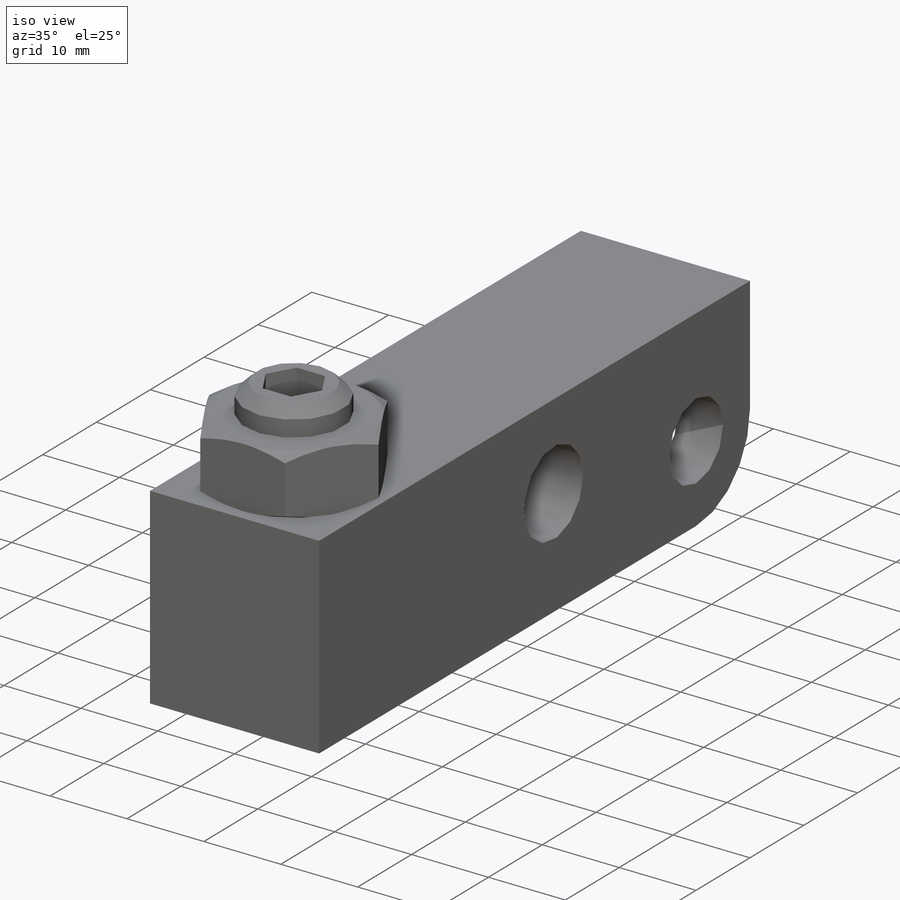
[diagram: iso view]
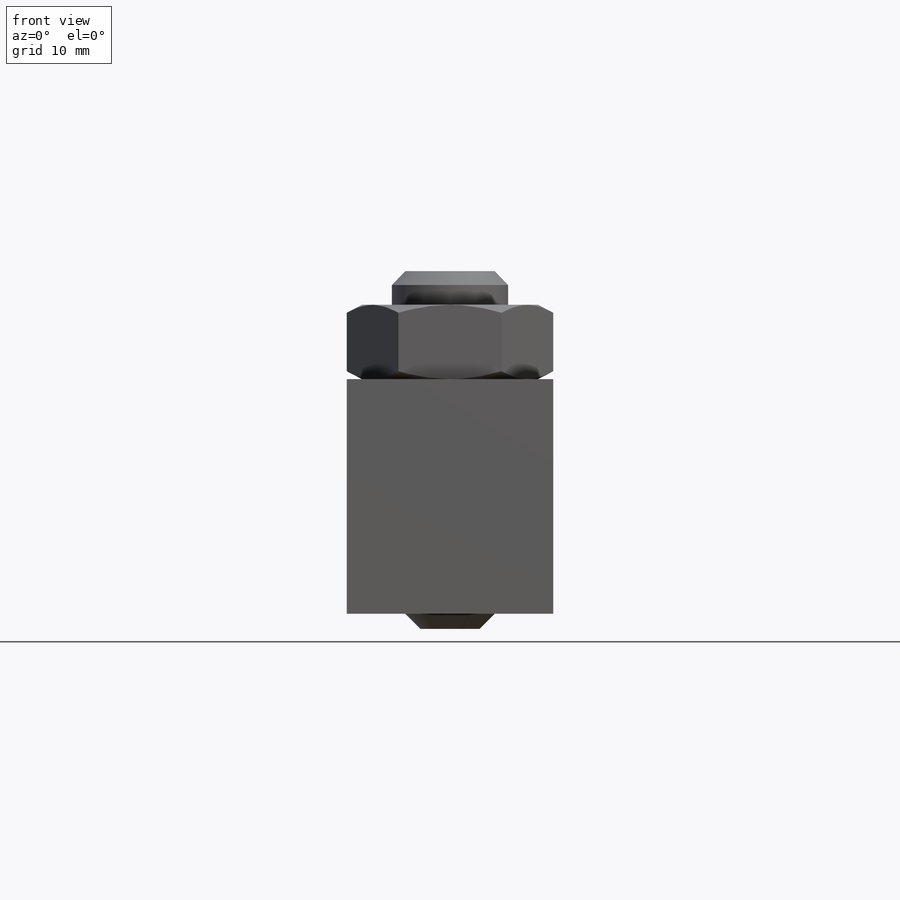
[diagram: front view]
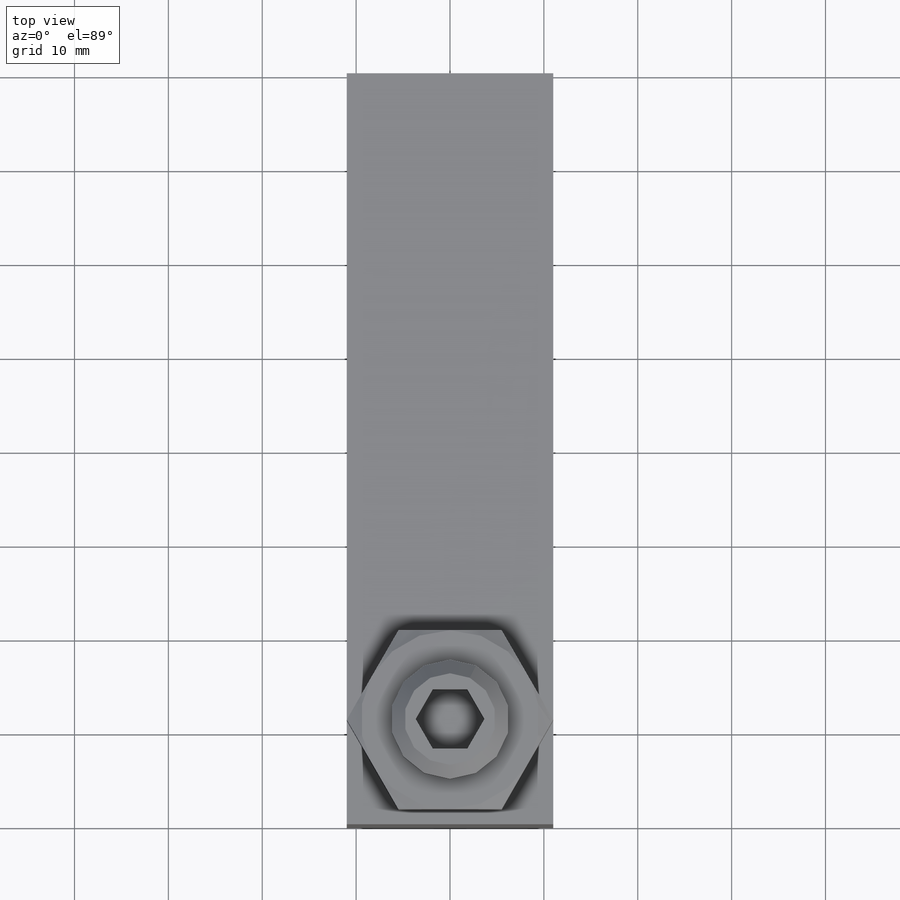
[diagram: top view]
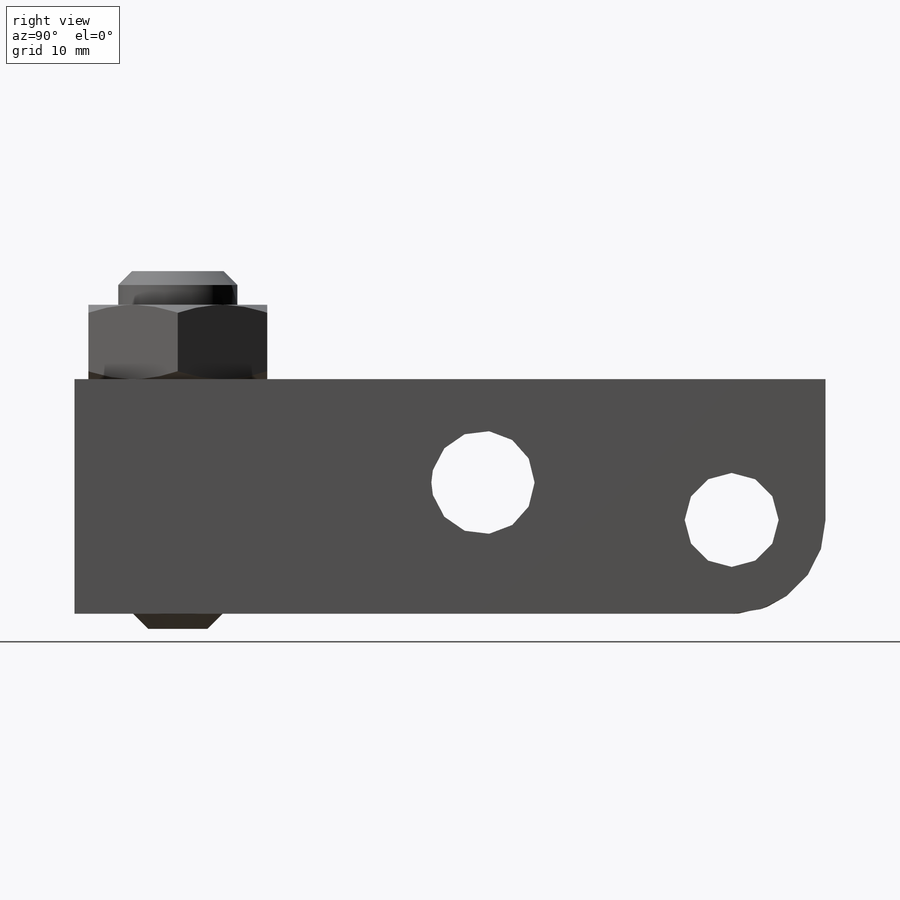
[diagram: right view]
SOLIDWORKS PART (.sldprt)
format: sldprt  version: not decoded by parser v0  size: 343,040 bytes
history: native  units: mm
features: sketch x7, cut_extrude x3, extrude x2, chamfer x2, material x1, fillet x1, revolve x1, cut_revolve x1 (+11 scaffold rows collapsed)
feature tree (29):
  scaffold x11  (default folders/planes/origin — collapsed)
  material  "AISI 1020"
  sketch  "S2D0001"  dims[D1=24.9936mm D2=80.01mm]
  extrude  "Extrude1"  Depth=10.9982mm
  sketch  "Sketch2"  dims[c1.D1=10.0076mm c1.D4=10.9982mm c1.D6=5.0mm c1.D5=5.0mm c1.D2=10.0mm c1.D3=10.0mm c2.D5=15.0mm c2.D6=3.9878mm c3.D5=26.4922mm]
  cut_extrude  "Cut-Extrude1"  Depth=100mm
  sketch  "Sketch5"  dims[c1.D3=2.65mm c1.D1=10.3124mm c1.D2=5.842mm c2.D3=27.1526mm]
  cut_extrude  "Cut-Extrude3"  Depth=21.9964mm
  fillet  "Fillet2"  Radius=10mm
  sketch  "Sketch6"  dims[c1.D1=38.1mm c1.D2=69.0mm c1.D3=1.6002mm c1.D4=12.7mm c1.D5=1.075mm c2.D5=45.0deg c2.D6=~1.850009mm c2.D7=25.0mm c3.D6=6.3246mm]
  revolve  "Revolve1"  Angle=360deg
  sketch  "Sketch8"  dims[D1=6.35mm]
  cut_extrude  "Cut-Extrude5"  Depth=5.334mm
  chamfer  "Chamfer1"  Distance=1.4732mm Angle=45deg
  sketch  "Sketch10"  dims[D1=10.0mm D2=19.05mm]
  extrude  "Extrude2"  Depth=7.9248mm
  sketch  "Sketch12"  dims[c1.D1=~3.155664mm c2.D1=30.0deg c2.D2=1.0mm]
  cut_revolve  "Cut-Revolve1"  Angle=360deg
  chamfer  "Chamfer2"  Distance=0.762mm Angle=45deg
decode coverage: 17 of 17 modeling features carry decoded parameters
note: ~ marks probable driven/reference dimensions
note: suppression state not decoded; provenance and decode notes live in map.json
